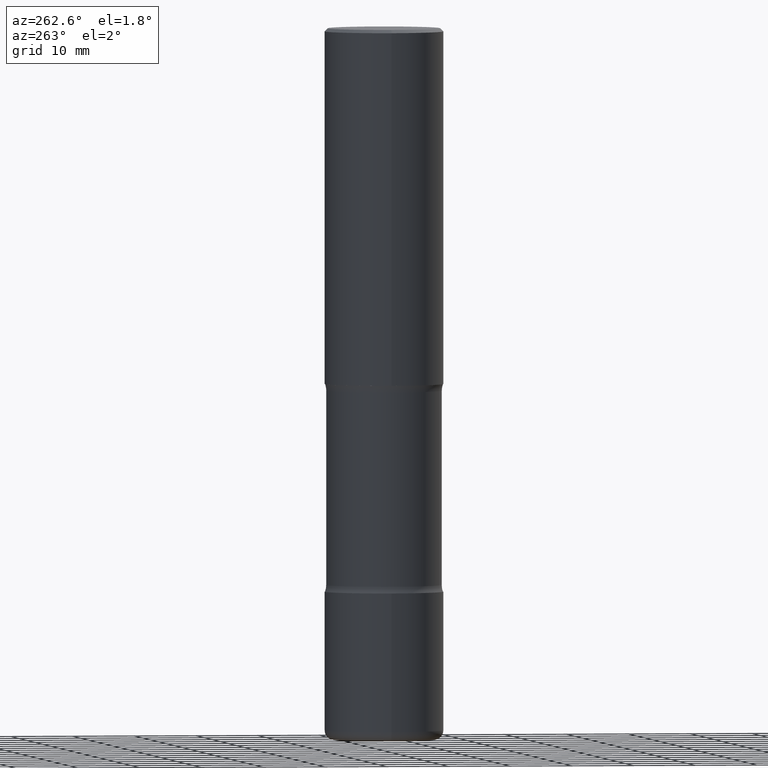
[diagram: clean part render]
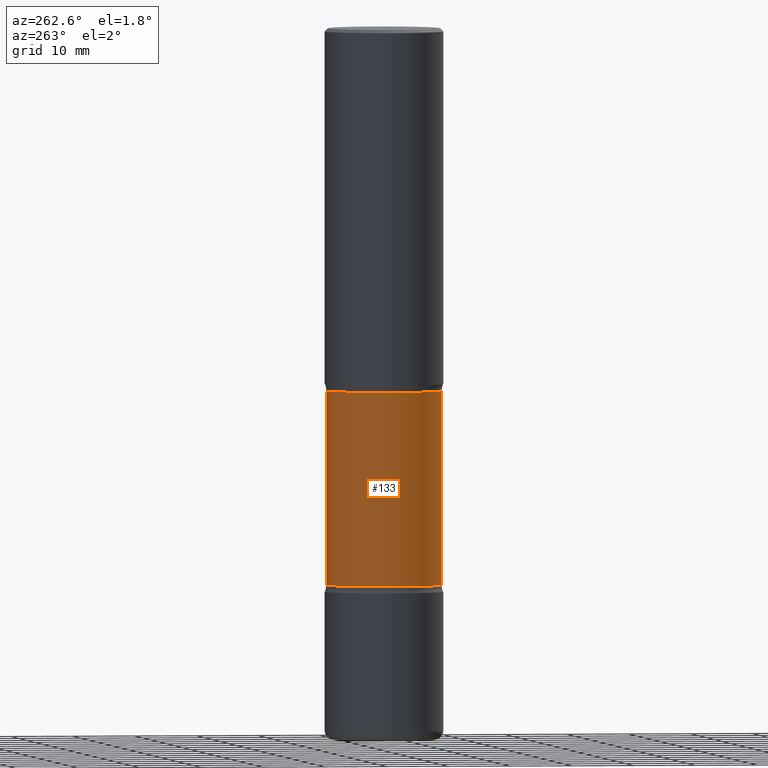
[diagram: same view with one face highlighted and labeled with its STEP entity id]
A machine part, auxiliary view. The second image highlights one B-rep face of the part: STEP entity #133.
In plain terms, the highlighted cylindrical surface (partial cylindrical patch) has radius 9.3345 mm, axis along (0, -0, -1).
Its self-contained STEP definition (entity closure, byte-faithful):
#5 = ORIENTED_EDGE ( 'NONE', *, *, #383, .F. ) ;
#15 = VECTOR ( 'NONE', #178, 39.37007874015748143 ) ;
#23 = DIRECTION ( 'NONE',  ( 6.982962677686265922E-15, 1.000000000000000000, -2.973439993103959853E-15 ) ) ;
#27 = ORIENTED_EDGE ( 'NONE', *, *, #458, .F. ) ;
#52 = LINE ( 'NONE', #533, #328 ) ;
#78 = CIRCLE ( 'NONE', #136, 0.3674999999999998823 ) ;
#83 = VERTEX_POINT ( 'NONE', #346 ) ;
#90 = FACE_OUTER_BOUND ( 'NONE', #516, .T. ) ;
#97 = CARTESIAN_POINT ( 'NONE',  ( 8.606743307597319638E-29, -1.229435593241547198E-14, -3.520353194726919543 ) ) ;
#99 = CARTESIAN_POINT ( 'NONE',  ( 2.566238784049757369E-15, 0.3674999999999917777, -2.292646805273081956 ) ) ;
#121 = CARTESIAN_POINT ( 'NONE',  ( -2.546959881672627592E-15, -0.3675000000000080425, -2.292646805273079291 ) ) ;
#133 = ADVANCED_FACE ( 'NONE', ( #90 ), #384, .T. ) ;
#136 = AXIS2_PLACEMENT_3D ( 'NONE', #154, #415, #541 ) ;
#154 = CARTESIAN_POINT ( 'NONE',  ( 5.541938411693159296E-29, -8.097327235842201196E-15, -2.292646805273080624 ) ) ;
#157 = EDGE_CURVE ( 'NONE', #271, #330, #52, .T. ) ;
#178 = DIRECTION ( 'NONE',  ( 2.496366331747755751E-29, -3.418593185330225082E-15, -1.000000000000000000 ) ) ;
#204 = ORIENTED_EDGE ( 'NONE', *, *, #532, .T. ) ;
#216 = CARTESIAN_POINT ( 'NONE',  ( 1.105230060928528948E-28, -1.564336982495255007E-14, -4.500000000000000000 ) ) ;
#234 = LINE ( 'NONE', #491, #15 ) ;
#241 = DIRECTION ( 'NONE',  ( 2.496366331747755751E-29, -3.418593185330225082E-15, -1.000000000000000000 ) ) ;
#250 = AXIS2_PLACEMENT_3D ( 'NONE', #216, #391, #433 ) ;
#251 = AXIS2_PLACEMENT_3D ( 'NONE', #97, #241, #23 ) ;
#271 = VERTEX_POINT ( 'NONE', #99 ) ;
#287 = CARTESIAN_POINT ( 'NONE',  ( 2.566238784049788529E-15, 0.3674999999999876699, -3.520353194726920876 ) ) ;
#315 = DIRECTION ( 'NONE',  ( 2.496366331747755751E-29, -3.418593185330225082E-15, -1.000000000000000000 ) ) ;
#328 = VECTOR ( 'NONE', #315, 39.37007874015748143 ) ;
#330 = VERTEX_POINT ( 'NONE', #287 ) ;
#346 = CARTESIAN_POINT ( 'NONE',  ( -2.546959881672594460E-15, -0.3675000000000122613, -3.520353194726918655 ) ) ;
#383 = EDGE_CURVE ( 'NONE', #521, #83, #234, .T. ) ;
#384 = CYLINDRICAL_SURFACE ( 'NONE', #250, 0.3674999999999999933 ) ;
#391 = DIRECTION ( 'NONE',  ( 2.496366331747755751E-29, -3.418593185330225082E-15, -1.000000000000000000 ) ) ;
#415 = DIRECTION ( 'NONE',  ( 2.496366331747755751E-29, -3.418593185330225082E-15, -1.000000000000000000 ) ) ;
#433 = DIRECTION ( 'NONE',  ( 6.982962677686265922E-15, 1.000000000000000000, -2.973439993103959853E-15 ) ) ;
#458 = EDGE_CURVE ( 'NONE', #83, #330, #558, .T. ) ;
#472 = ORIENTED_EDGE ( 'NONE', *, *, #157, .T. ) ;
#491 = CARTESIAN_POINT ( 'NONE',  ( -2.521233014180926904E-15, -0.3675000000000155920, -4.499999999999999112 ) ) ;
#516 = EDGE_LOOP ( 'NONE', ( #5, #204, #472, #27 ) ) ;
#521 = VERTEX_POINT ( 'NONE', #121 ) ;
#532 = EDGE_CURVE ( 'NONE', #521, #271, #78, .T. ) ;
#533 = CARTESIAN_POINT ( 'NONE',  ( 2.566238784049813378E-15, 0.3674999999999843392, -4.500000000000000888 ) ) ;
#541 = DIRECTION ( 'NONE',  ( 6.982962677686266711E-15, 1.000000000000000000, -3.716799991379951197E-15 ) ) ;
#558 = CIRCLE ( 'NONE', #251, 0.3674999999999999933 ) ;